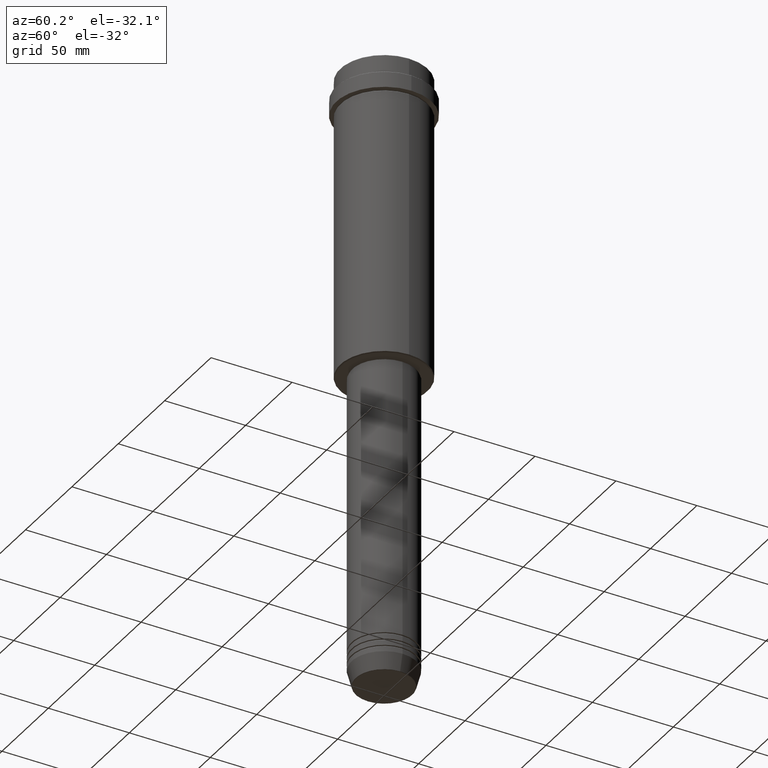
[diagram: clean part render]
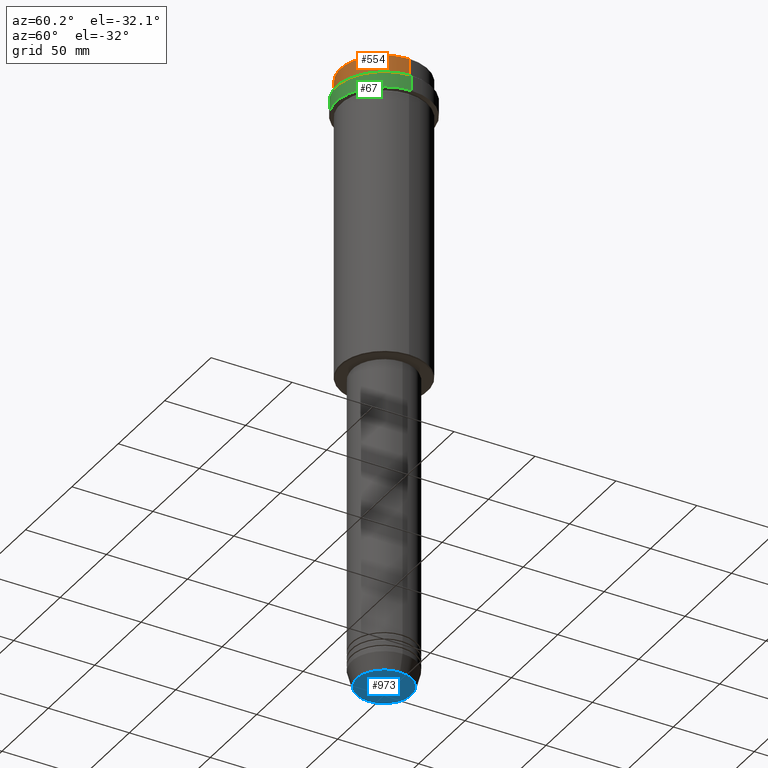
[diagram: same view with three faces highlighted in distinct colors, each labeled with its STEP entity id]
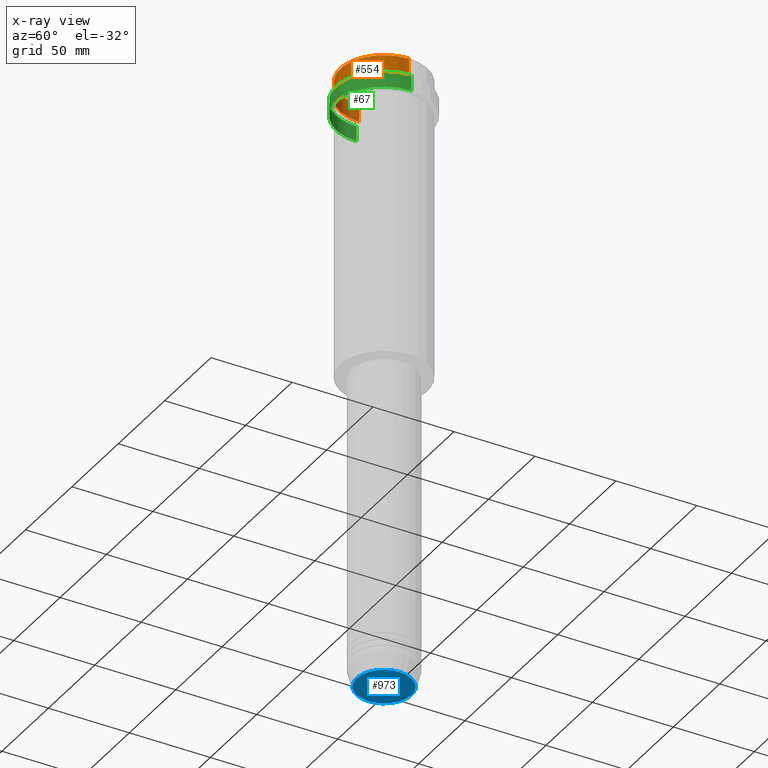
[diagram: x-ray of the same camera — body ghosted, the three highlighted faces saturated]
A machine part, auxiliary view with three faces highlighted in distinct colors.
The next image is the same camera in x-ray (body ghosted, the three faces saturated) — at least one of them is partly hidden behind the body in this view.
Their STEP definitions:

[orange] entity #554 — the highlighted cylindrical surface (partial cylindrical patch) has radius 27 mm, axis along (-0, -0, 1).
#3 = DIRECTION ( 'NONE',  ( 0.000000000000000000, 0.000000000000000000, -1.000000000000000000 ) ) ;
#33 = VERTEX_POINT ( 'NONE', #597 ) ;
#93 = CARTESIAN_POINT ( 'NONE',  ( 0.000000000000000000, 0.000000000000000000, -11.00000000000000178 ) ) ;
#117 = EDGE_CURVE ( 'NONE', #487, #33, #1155, .T. ) ;
#118 = CIRCLE ( 'NONE', #302, 27.00000000000000355 ) ;
#223 = CARTESIAN_POINT ( 'NONE',  ( 27.00000000000000355, 0.000000000000000000, 0.000000000000000000 ) ) ;
#238 = ORIENTED_EDGE ( 'NONE', *, *, #602, .F. ) ;
#240 = ORIENTED_EDGE ( 'NONE', *, *, #253, .T. ) ;
#253 = EDGE_CURVE ( 'NONE', #957, #358, #118, .T. ) ;
#295 = CARTESIAN_POINT ( 'NONE',  ( -27.00000000000000355, 3.306546357697854128E-15, -11.00000000000000178 ) ) ;
#302 = AXIS2_PLACEMENT_3D ( 'NONE', #640, #3, #438 ) ;
#358 = VERTEX_POINT ( 'NONE', #1247 ) ;
#413 = EDGE_LOOP ( 'NONE', ( #238, #808, #463, #240 ) ) ;
#431 = CARTESIAN_POINT ( 'NONE',  ( 0.000000000000000000, 0.000000000000000000, 0.000000000000000000 ) ) ;
#438 = DIRECTION ( 'NONE',  ( 1.000000000000000000, 0.000000000000000000, 0.000000000000000000 ) ) ;
#463 = ORIENTED_EDGE ( 'NONE', *, *, #697, .T. ) ;
#487 = VERTEX_POINT ( 'NONE', #295 ) ;
#539 = LINE ( 'NONE', #1089, #833 ) ;
#554 = ADVANCED_FACE ( 'NONE', ( #1205 ), #628, .T. ) ;
#555 = DIRECTION ( 'NONE',  ( 1.000000000000000000, 0.000000000000000000, 0.000000000000000000 ) ) ;
#597 = CARTESIAN_POINT ( 'NONE',  ( 27.00000000000000355, 0.000000000000000000, -11.00000000000000178 ) ) ;
#602 = EDGE_CURVE ( 'NONE', #487, #358, #539, .T. ) ;
#628 = CYLINDRICAL_SURFACE ( 'NONE', #1297, 27.00000000000000355 ) ;
#640 = CARTESIAN_POINT ( 'NONE',  ( 0.000000000000000000, 0.000000000000000000, -0.5000000000000350830 ) ) ;
#665 = LINE ( 'NONE', #223, #1024 ) ;
#697 = EDGE_CURVE ( 'NONE', #33, #957, #665, .T. ) ;
#753 = DIRECTION ( 'NONE',  ( -0.000000000000000000, -0.000000000000000000, 1.000000000000000000 ) ) ;
#808 = ORIENTED_EDGE ( 'NONE', *, *, #117, .T. ) ;
#833 = VECTOR ( 'NONE', #1065, 1000.000000000000000 ) ;
#876 = DIRECTION ( 'NONE',  ( -0.000000000000000000, -0.000000000000000000, 1.000000000000000000 ) ) ;
#882 = DIRECTION ( 'NONE',  ( 1.000000000000000000, 0.000000000000000000, 0.000000000000000000 ) ) ;
#957 = VERTEX_POINT ( 'NONE', #984 ) ;
#984 = CARTESIAN_POINT ( 'NONE',  ( 27.00000000000000355, 0.000000000000000000, -0.5000000000000350830 ) ) ;
#1024 = VECTOR ( 'NONE', #1135, 1000.000000000000000 ) ;
#1065 = DIRECTION ( 'NONE',  ( -0.000000000000000000, -0.000000000000000000, 1.000000000000000000 ) ) ;
#1089 = CARTESIAN_POINT ( 'NONE',  ( -27.00000000000000355, 3.306546357697854128E-15, 0.000000000000000000 ) ) ;
#1135 = DIRECTION ( 'NONE',  ( -0.000000000000000000, -0.000000000000000000, 1.000000000000000000 ) ) ;
#1155 = CIRCLE ( 'NONE', #1386, 27.00000000000000355 ) ;
#1205 = FACE_OUTER_BOUND ( 'NONE', #413, .T. ) ;
#1247 = CARTESIAN_POINT ( 'NONE',  ( -27.00000000000000355, 3.306546357697854128E-15, -0.5000000000000350830 ) ) ;
#1297 = AXIS2_PLACEMENT_3D ( 'NONE', #431, #753, #882 ) ;
#1386 = AXIS2_PLACEMENT_3D ( 'NONE', #93, #876, #555 ) ;

[blue] entity #973 — the highlighted planar face has unit normal (0, -0, 1).
#4 = ORIENTED_EDGE ( 'NONE', *, *, #846, .T. ) ;
#73 = CARTESIAN_POINT ( 'NONE',  ( -16.93684458169928675, 2.103738199747889592E-15, -383.0000000000000000 ) ) ;
#101 = CARTESIAN_POINT ( 'NONE',  ( 16.93684458169928675, 0.000000000000000000, -383.0000000000000000 ) ) ;
#157 = ORIENTED_EDGE ( 'NONE', *, *, #1210, .T. ) ;
#265 = DIRECTION ( 'NONE',  ( 1.000000000000000000, 0.000000000000000000, 0.000000000000000000 ) ) ;
#285 = CIRCLE ( 'NONE', #1091, 16.93684458169928675 ) ;
#300 = DIRECTION ( 'NONE',  ( 1.000000000000000000, 0.000000000000000000, 0.000000000000000000 ) ) ;
#323 = FACE_OUTER_BOUND ( 'NONE', #1175, .T. ) ;
#409 = CARTESIAN_POINT ( 'NONE',  ( 0.000000000000000000, 0.000000000000000000, -383.0000000000000000 ) ) ;
#452 = CARTESIAN_POINT ( 'NONE',  ( 0.000000000000000000, 0.000000000000000000, -383.0000000000000000 ) ) ;
#470 = AXIS2_PLACEMENT_3D ( 'NONE', #828, #1372, #265 ) ;
#619 = VERTEX_POINT ( 'NONE', #101 ) ;
#649 = DIRECTION ( 'NONE',  ( 0.000000000000000000, -0.000000000000000000, 1.000000000000000000 ) ) ;
#791 = DIRECTION ( 'NONE',  ( 1.000000000000000000, 0.000000000000000000, 0.000000000000000000 ) ) ;
#828 = CARTESIAN_POINT ( 'NONE',  ( 0.000000000000000000, 0.000000000000000000, -383.0000000000000000 ) ) ;
#846 = EDGE_CURVE ( 'NONE', #619, #918, #1321, .T. ) ;
#895 = DIRECTION ( 'NONE',  ( 0.000000000000000000, 0.000000000000000000, -1.000000000000000000 ) ) ;
#918 = VERTEX_POINT ( 'NONE', #73 ) ;
#973 = ADVANCED_FACE ( 'NONE', ( #323 ), #1203, .F. ) ;
#1091 = AXIS2_PLACEMENT_3D ( 'NONE', #452, #895, #791 ) ;
#1116 = AXIS2_PLACEMENT_3D ( 'NONE', #409, #649, #300 ) ;
#1175 = EDGE_LOOP ( 'NONE', ( #4, #157 ) ) ;
#1203 = PLANE ( 'NONE',  #1116 ) ;
#1210 = EDGE_CURVE ( 'NONE', #918, #619, #285, .T. ) ;
#1321 = CIRCLE ( 'NONE', #470, 16.93684458169928675 ) ;
#1372 = DIRECTION ( 'NONE',  ( 0.000000000000000000, 0.000000000000000000, -1.000000000000000000 ) ) ;

[green] entity #67 — the highlighted cylindrical surface (partial cylindrical patch) has radius 29.5 mm, axis along (-0, -0, 1).
#21 = DIRECTION ( 'NONE',  ( -0.000000000000000000, -0.000000000000000000, 1.000000000000000000 ) ) ;
#28 = AXIS2_PLACEMENT_3D ( 'NONE', #1306, #653, #1075 ) ;
#67 = ADVANCED_FACE ( 'NONE', ( #1354 ), #1260, .T. ) ;
#133 = LINE ( 'NONE', #663, #544 ) ;
#192 = DIRECTION ( 'NONE',  ( 0.000000000000000000, 0.000000000000000000, -1.000000000000000000 ) ) ;
#236 = LINE ( 'NONE', #475, #1061 ) ;
#260 = AXIS2_PLACEMENT_3D ( 'NONE', #1291, #192, #974 ) ;
#293 = VERTEX_POINT ( 'NONE', #1336 ) ;
#352 = DIRECTION ( 'NONE',  ( -0.000000000000000000, -0.000000000000000000, 1.000000000000000000 ) ) ;
#370 = EDGE_CURVE ( 'NONE', #1232, #293, #236, .T. ) ;
#402 = ORIENTED_EDGE ( 'NONE', *, *, #774, .T. ) ;
#443 = CIRCLE ( 'NONE', #543, 29.49999999999999645 ) ;
#461 = CARTESIAN_POINT ( 'NONE',  ( 0.000000000000000000, 0.000000000000000000, -22.00000000000000711 ) ) ;
#475 = CARTESIAN_POINT ( 'NONE',  ( -29.50000000000000000, 3.612708057484691604E-15, 0.000000000000000000 ) ) ;
#543 = AXIS2_PLACEMENT_3D ( 'NONE', #461, #352, #1351 ) ;
#544 = VECTOR ( 'NONE', #21, 1000.000000000000000 ) ;
#556 = EDGE_LOOP ( 'NONE', ( #658, #402, #1397, #1039 ) ) ;
#577 = DIRECTION ( 'NONE',  ( -0.000000000000000000, -0.000000000000000000, 1.000000000000000000 ) ) ;
#618 = CARTESIAN_POINT ( 'NONE',  ( -29.49999999999999645, 3.612708057484690815E-15, -22.00000000000000711 ) ) ;
#643 = VERTEX_POINT ( 'NONE', #743 ) ;
#653 = DIRECTION ( 'NONE',  ( -0.000000000000000000, -0.000000000000000000, 1.000000000000000000 ) ) ;
#658 = ORIENTED_EDGE ( 'NONE', *, *, #370, .F. ) ;
#663 = CARTESIAN_POINT ( 'NONE',  ( 29.50000000000000000, 0.000000000000000000, 0.000000000000000000 ) ) ;
#743 = CARTESIAN_POINT ( 'NONE',  ( 29.50000000000000000, 0.000000000000000000, -12.50000000000000355 ) ) ;
#774 = EDGE_CURVE ( 'NONE', #1232, #819, #443, .T. ) ;
#819 = VERTEX_POINT ( 'NONE', #1168 ) ;
#889 = CIRCLE ( 'NONE', #260, 29.50000000000000000 ) ;
#974 = DIRECTION ( 'NONE',  ( 1.000000000000000000, 0.000000000000000000, 0.000000000000000000 ) ) ;
#1039 = ORIENTED_EDGE ( 'NONE', *, *, #1046, .T. ) ;
#1046 = EDGE_CURVE ( 'NONE', #643, #293, #889, .T. ) ;
#1061 = VECTOR ( 'NONE', #577, 1000.000000000000000 ) ;
#1075 = DIRECTION ( 'NONE',  ( 1.000000000000000000, 0.000000000000000000, 0.000000000000000000 ) ) ;
#1168 = CARTESIAN_POINT ( 'NONE',  ( 29.49999999999999645, 0.000000000000000000, -22.00000000000000711 ) ) ;
#1177 = EDGE_CURVE ( 'NONE', #819, #643, #133, .T. ) ;
#1232 = VERTEX_POINT ( 'NONE', #618 ) ;
#1260 = CYLINDRICAL_SURFACE ( 'NONE', #28, 29.50000000000000000 ) ;
#1291 = CARTESIAN_POINT ( 'NONE',  ( 0.000000000000000000, 0.000000000000000000, -12.50000000000000355 ) ) ;
#1306 = CARTESIAN_POINT ( 'NONE',  ( 0.000000000000000000, 0.000000000000000000, 0.000000000000000000 ) ) ;
#1336 = CARTESIAN_POINT ( 'NONE',  ( -29.50000000000000000, 3.612708057484691604E-15, -12.50000000000000355 ) ) ;
#1351 = DIRECTION ( 'NONE',  ( 1.000000000000000000, 0.000000000000000000, 0.000000000000000000 ) ) ;
#1354 = FACE_OUTER_BOUND ( 'NONE', #556, .T. ) ;
#1397 = ORIENTED_EDGE ( 'NONE', *, *, #1177, .T. ) ;